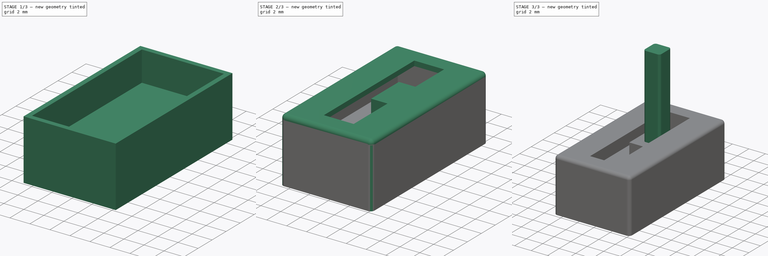
[diagram: build sequence overview — one tinted view per stage of 3, left to right]
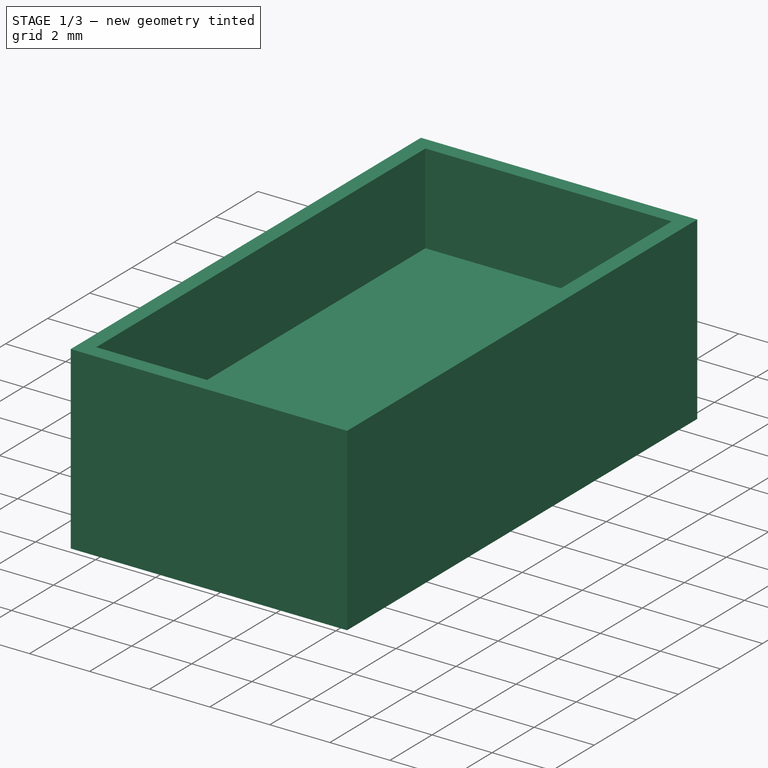
[diagram: stage 1 of 3 — iso view after this stage's code; geometry added in this stage tinted green]
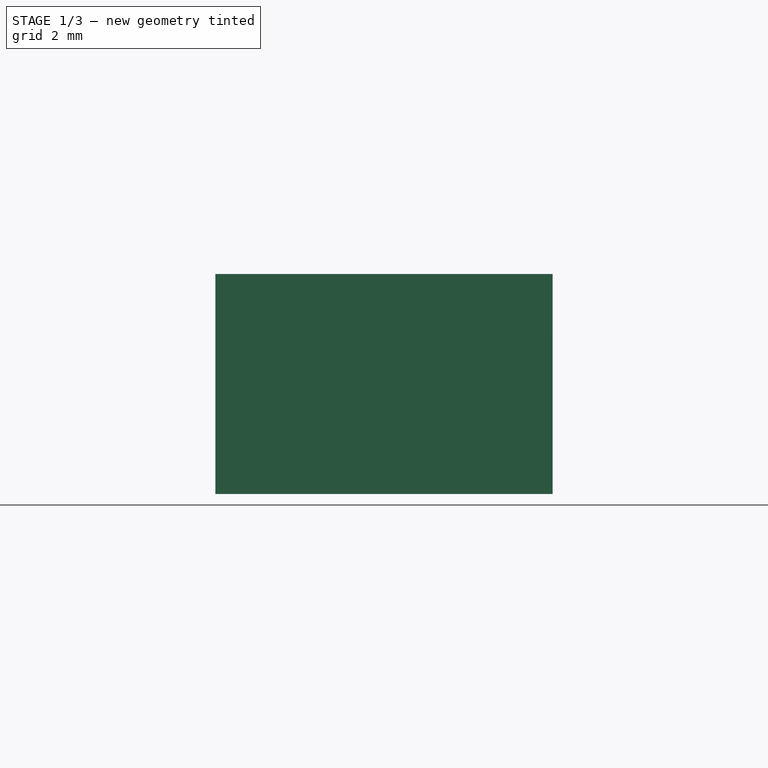
[diagram: stage 1 of 3 — front view after this stage's code; geometry added in this stage tinted green]
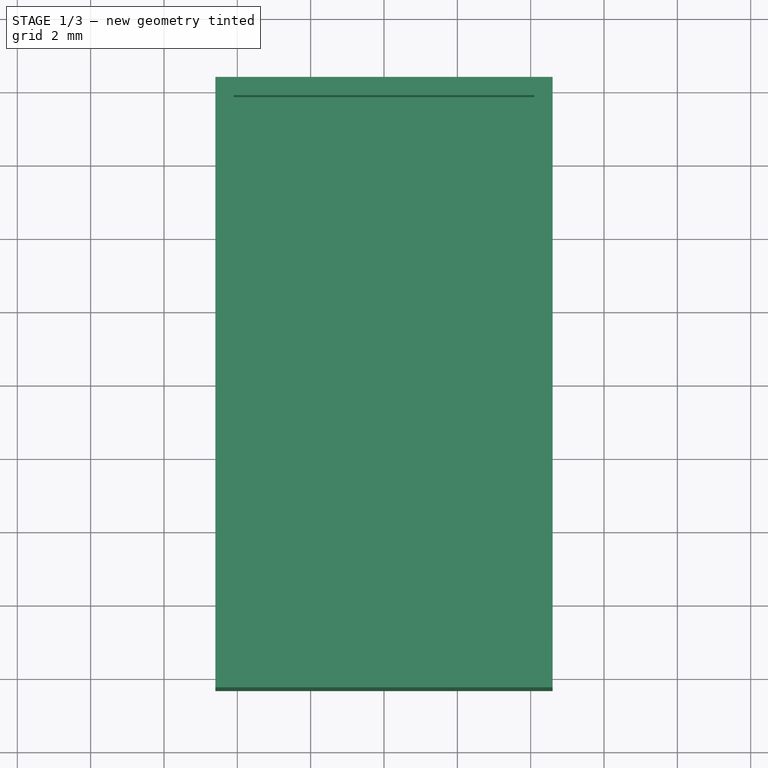
[diagram: stage 1 of 3 — top view after this stage's code; geometry added in this stage tinted green]
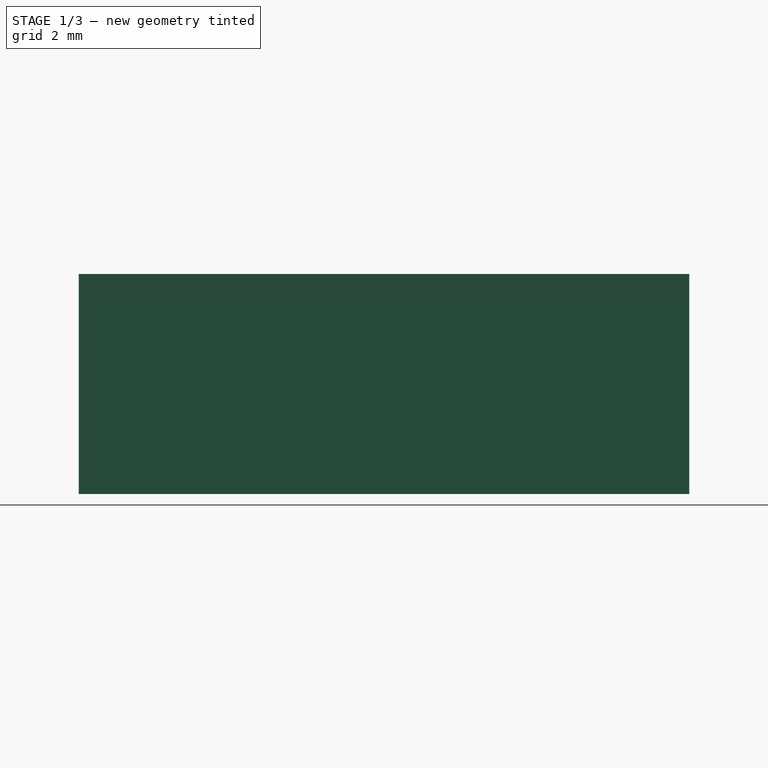
[diagram: stage 1 of 3 — right view after this stage's code; geometry added in this stage tinted green]
FCSTD DOCUMENT  (FreeCAD 0.20R)
Label: Potenciometro
License: All rights reserved
LicenseURL: http://en.wikipedia.org/wiki/All_rights_reserved
objects: Sketcher::SketchObject×5, PartDesign::Pad×5, PartDesign::Fillet×2, PartDesign::Body×1
note: 20 computed .brp shape members not serialized (recipe doc carries the construction recipe); baked Part::Feature solids carry a one-line shape summary decoded from their .brp

FEATURE [Sketcher::SketchObject] Sketch
  FullyConstrained = true
  MapMode = 5
  Support = -> [XY_Plane]
  sketch-geometry (6):
    g0: LineSegment StartX=-4.6 StartY=8.325 StartZ=0 EndX=4.6 EndY=8.325 EndZ=0
    g1: LineSegment StartX=4.6 StartY=8.325 StartZ=0 EndX=4.6 EndY=-8.325 EndZ=0
    g2: LineSegment StartX=4.6 StartY=-8.325 StartZ=0 EndX=-4.6 EndY=-8.325 EndZ=0
    g3: LineSegment StartX=-4.6 StartY=-8.325 StartZ=0 EndX=-4.6 EndY=8.325 EndZ=0
    g4: LineSegment StartX=-4.6 StartY=8.325 StartZ=0 EndX=4.6 EndY=-8.325 EndZ=0
    g5: LineSegment StartX=4.6 StartY=8.325 StartZ=0 EndX=-4.6 EndY=-8.325 EndZ=0
  constraints (16):
    c: Coincident(g0,g1)
    c: Coincident(g1,g2)
    c: Coincident(g2,g3)
    c: Coincident(g3,g0)
    c: Horizontal(g0)
    c: Horizontal(g2)
    c: Vertical(g1)
    c: Vertical(g3)
    c: Coincident(g4,g0)
    c: Coincident(g4,g1)
    c: Coincident(g5,g0)
    c: Coincident(g5,g2)
    c: PointOnObject(g-1,g5)
    c: PointOnObject(g-1,g4)
    c: DistanceY(g2,g0) = 16.65
    c: DistanceX(g0,g0) = 9.2
FEATURE [PartDesign::Pad] Pad
  Direction = (0,0,1)
  Length = 3
  Length2 = 10
  Profile = -> Sketch
  ReferenceAxis = -> Sketch [N_Axis]
  Type = 0
FEATURE [Sketcher::SketchObject] Sketch001
  ExternalGeometry = -> [Pad]
  FullyConstrained = true
  MapMode = 5
  Placement = pos=(0,0,3) rot=(0,0,1;0rad)
  Support = -> [Pad]
  sketch-geometry (11):
    g0: LineSegment StartX=-4.6 StartY=8.325 StartZ=0 EndX=4.6 EndY=8.325 EndZ=0
    g1: LineSegment StartX=4.6 StartY=8.325 StartZ=0 EndX=4.6 EndY=-8.325 EndZ=0
    g2: LineSegment StartX=4.6 StartY=-8.325 StartZ=0 EndX=-4.6 EndY=-8.325 EndZ=0
    g3: LineSegment StartX=-4.6 StartY=-8.325 StartZ=0 EndX=-4.6 EndY=8.325 EndZ=0
    g4: LineSegment StartX=-4.1 StartY=7.825 StartZ=0 EndX=4.1 EndY=7.825 EndZ=0
    g5: LineSegment StartX=4.1 StartY=7.825 StartZ=0 EndX=4.1 EndY=-7.825 EndZ=0
    g6: LineSegment StartX=4.1 StartY=-7.825 StartZ=0 EndX=-4.1 EndY=-7.825 EndZ=0
    g7: LineSegment StartX=-4.1 StartY=-7.825 StartZ=0 EndX=-4.1 EndY=7.825 EndZ=0
    g8: LineSegment StartX=-4.1 StartY=7.825 StartZ=0 EndX=-4.6 EndY=8.325 EndZ=0
    g9: LineSegment StartX=4.1 StartY=7.825 StartZ=0 EndX=4.6 EndY=8.325 EndZ=0
    g10: LineSegment StartX=4.1 StartY=-7.825 StartZ=0 EndX=4.6 EndY=-8.325 EndZ=0
  constraints (28):
    c: Coincident(g0,g1)
    c: Coincident(g1,g2)
    c: Coincident(g2,g3)
    c: Coincident(g3,g0)
    c: Horizontal(g0)
    c: Horizontal(g2)
    c: Vertical(g1)
    c: Vertical(g3)
    c: Coincident(g0,g-3)
    c: Coincident(g1,g-4)
    c: Coincident(g4,g5)
    c: Coincident(g5,g6)
    c: Coincident(g6,g7)
    c: Coincident(g7,g4)
    c: Horizontal(g4)
    c: Horizontal(g6)
    c: Vertical(g5)
    c: Vertical(g7)
    c: Coincident(g8,g4)
    c: Coincident(g8,g0)
    c: Coincident(g9,g4)
    c: Coincident(g9,g0)
    c: Coincident(g10,g5)
    c: Coincident(g10,g1)
    c: Equal(g9,g8)
    c: Equal(g8,g10)
    c: DistanceY(g1,g5) = 0.5
    c: DistanceX(g5,g1) = 0.5
FEATURE [PartDesign::Pad] Pad001
  BaseFeature = -> Pad
  Direction = (0,0,1)
  Length = 3
  Length2 = 10
  Profile = -> Sketch001
  ReferenceAxis = -> Sketch001 [N_Axis]
  Type = 0
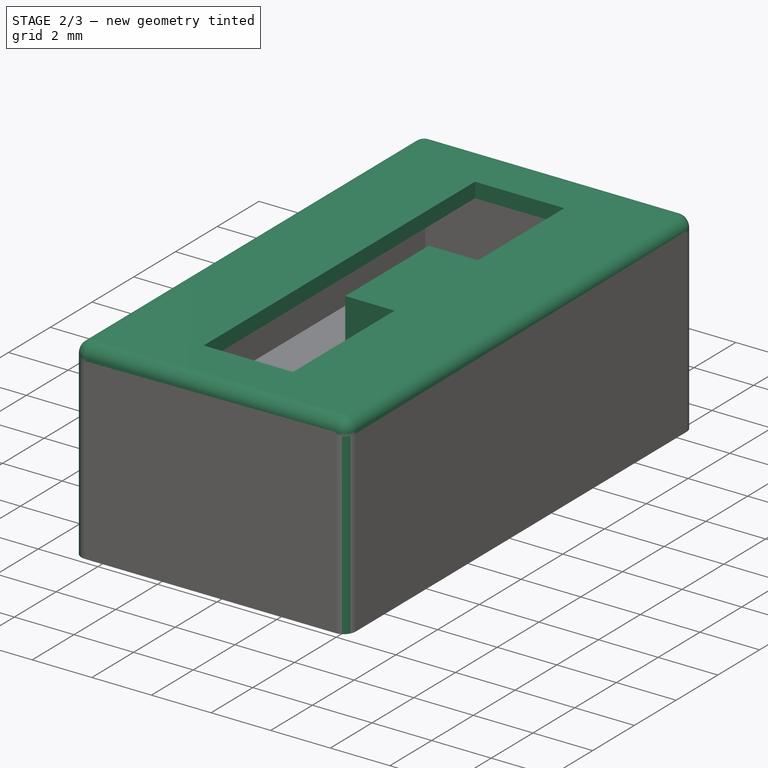
[diagram: stage 2 of 3 — iso view after this stage's code; geometry added in this stage tinted green]
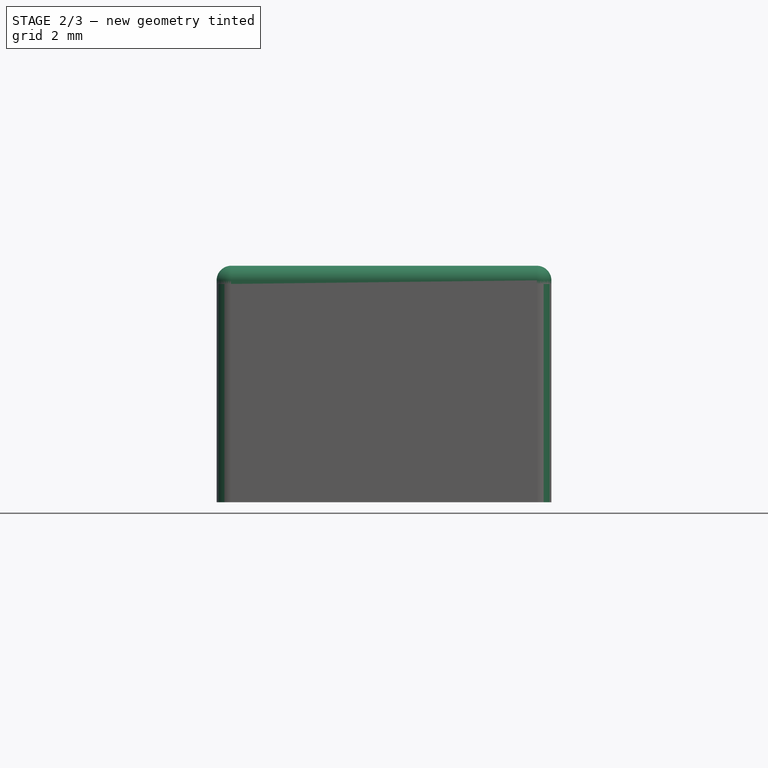
[diagram: stage 2 of 3 — front view after this stage's code; geometry added in this stage tinted green]
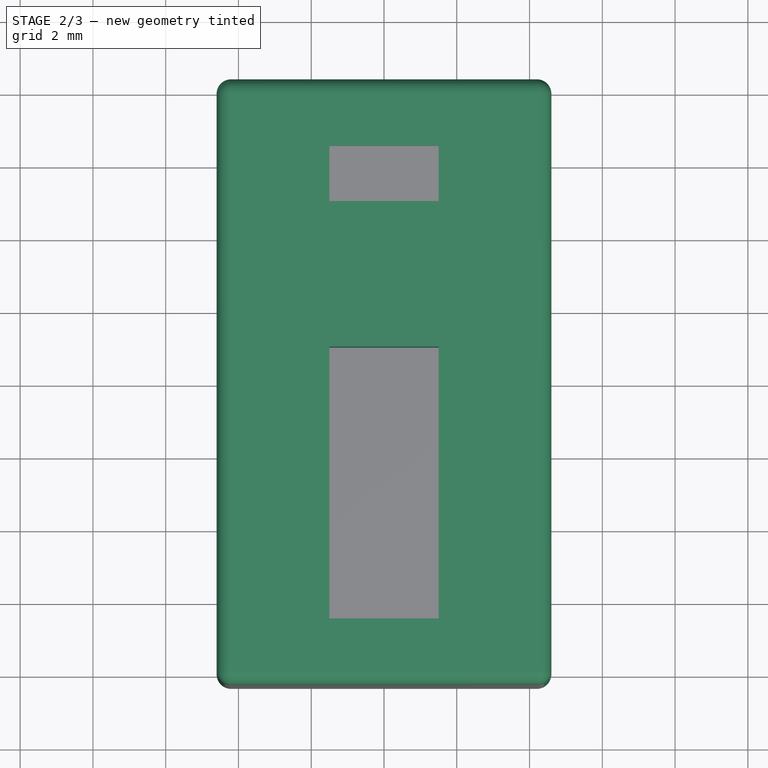
[diagram: stage 2 of 3 — top view after this stage's code; geometry added in this stage tinted green]
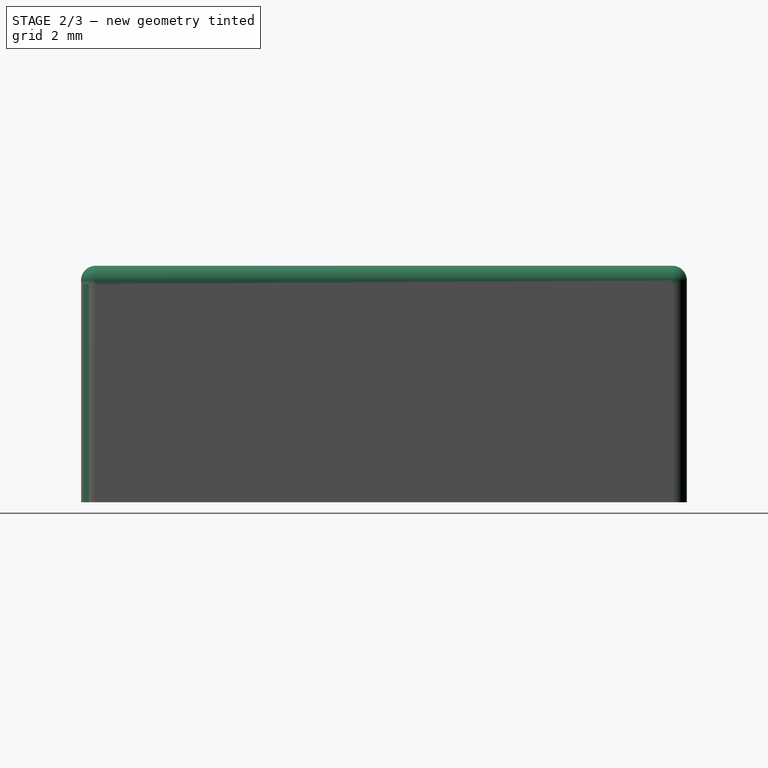
[diagram: stage 2 of 3 — right view after this stage's code; geometry added in this stage tinted green]
FEATURE [Sketcher::SketchObject] Sketch002
  ExternalGeometry = -> [Pad001]
  FullyConstrained = true
  MapMode = 5
  Placement = pos=(0,0,6) rot=(0,0,1;0rad)
  Support = -> [Pad001]
  sketch-geometry (10):
    g0: LineSegment StartX=-4.6 StartY=8.325 StartZ=0 EndX=4.6 EndY=8.325 EndZ=0
    g1: LineSegment StartX=4.6 StartY=8.325 StartZ=0 EndX=4.6 EndY=-8.325 EndZ=0
    g2: LineSegment StartX=4.6 StartY=-8.325 StartZ=0 EndX=-4.6 EndY=-8.325 EndZ=0
    g3: LineSegment StartX=-4.6 StartY=-8.325 StartZ=0 EndX=-4.6 EndY=8.325 EndZ=0
    g4: LineSegment StartX=-1.5 StartY=6.5 StartZ=0 EndX=1.5 EndY=6.5 EndZ=0
    g5: LineSegment StartX=1.5 StartY=6.5 StartZ=0 EndX=1.5 EndY=-6.5 EndZ=0
    g6: LineSegment StartX=1.5 StartY=-6.5 StartZ=0 EndX=-1.5 EndY=-6.5 EndZ=0
    g7: LineSegment StartX=-1.5 StartY=-6.5 StartZ=0 EndX=-1.5 EndY=6.5 EndZ=0
    g8: LineSegment StartX=-1.5 StartY=6.5 StartZ=0 EndX=1.5 EndY=-6.5 EndZ=0
    g9: LineSegment StartX=1.5 StartY=6.5 StartZ=0 EndX=-1.5 EndY=-6.5 EndZ=0
  constraints (26):
    c: Coincident(g0,g1)
    c: Coincident(g1,g2)
    c: Coincident(g2,g3)
    c: Coincident(g3,g0)
    c: Horizontal(g0)
    c: Horizontal(g2)
    c: Vertical(g1)
    c: Vertical(g3)
    c: Coincident(g0,g-3)
    c: Coincident(g1,g-4)
    c: Coincident(g4,g5)
    c: Coincident(g5,g6)
    c: Coincident(g6,g7)
    c: Coincident(g7,g4)
    c: Horizontal(g4)
    c: Horizontal(g6)
    c: Vertical(g5)
    c: Vertical(g7)
    c: DistanceY(g5,g4) = 13
    c: DistanceX(g4,g4) = 3
    c: Coincident(g8,g4)
    c: Coincident(g8,g5)
    c: Coincident(g9,g4)
    c: Coincident(g9,g6)
    c: PointOnObject(g-1,g9)
    c: PointOnObject(g-1,g8)
FEATURE [PartDesign::Pad] Pad002
  BaseFeature = -> Pad001
  Direction = (0,0,1)
  Length = 0.5
  Length2 = 10
  Profile = -> Sketch002
  ReferenceAxis = -> Sketch002 [N_Axis]
  Type = 0
FEATURE [PartDesign::Fillet] Fillet
  Base = -> Pad002 [Edge8,Edge5,Edge1,Edge2,Edge22,Edge27,Edge25,Edge28]
  BaseFeature = -> Pad002
  Radius = 0.4
  SupportTransform = false
  UseAllEdges = false
FEATURE [Sketcher::SketchObject] Sketch003
  FullyConstrained = true
  MapMode = 5
  Placement = pos=(0,0,3) rot=(0,0,1;0rad)
  Support = -> [Fillet]
  sketch-geometry (6):
    g0: LineSegment StartX=-2 StartY=5 StartZ=0 EndX=2 EndY=5 EndZ=0
    g1: LineSegment StartX=2 StartY=5 StartZ=0 EndX=2 EndY=1 EndZ=0
    g2: LineSegment StartX=2 StartY=1 StartZ=0 EndX=-2 EndY=1 EndZ=0
    g3: LineSegment StartX=-2 StartY=1 StartZ=0 EndX=-2 EndY=5 EndZ=0
    g4: LineSegment StartX=-2 StartY=5 StartZ=0 EndX=2 EndY=1 EndZ=0
    g5: LineSegment StartX=2 StartY=5 StartZ=0 EndX=0 EndY=3 EndZ=0
  constraints (17):
    c: Coincident(g0,g1)
    c: Coincident(g1,g2)
    c: Coincident(g2,g3)
    c: Coincident(g3,g0)
    c: Horizontal(g0)
    c: Horizontal(g2)
    c: Vertical(g1)
    c: Vertical(g3)
    c: Coincident(g4,g0)
    c: Coincident(g4,g1)
    c: Coincident(g5,g0)
    c: PointOnObject(g5,g4)
    c: Vertical(g5,g-1)
    c: Perpendicular(g4,g5)
    c: Equal(g1,g2)
    c: DistanceY(g1,g0) = 4
    c: DistanceY(g-1,g5) = 3
FEATURE [PartDesign::Pad] Pad003
  BaseFeature = -> Fillet
  Direction = (0,0,1)
  Length = 2
  Length2 = 10
  Profile = -> Sketch003
  ReferenceAxis = -> Sketch003 [N_Axis]
  Type = 0
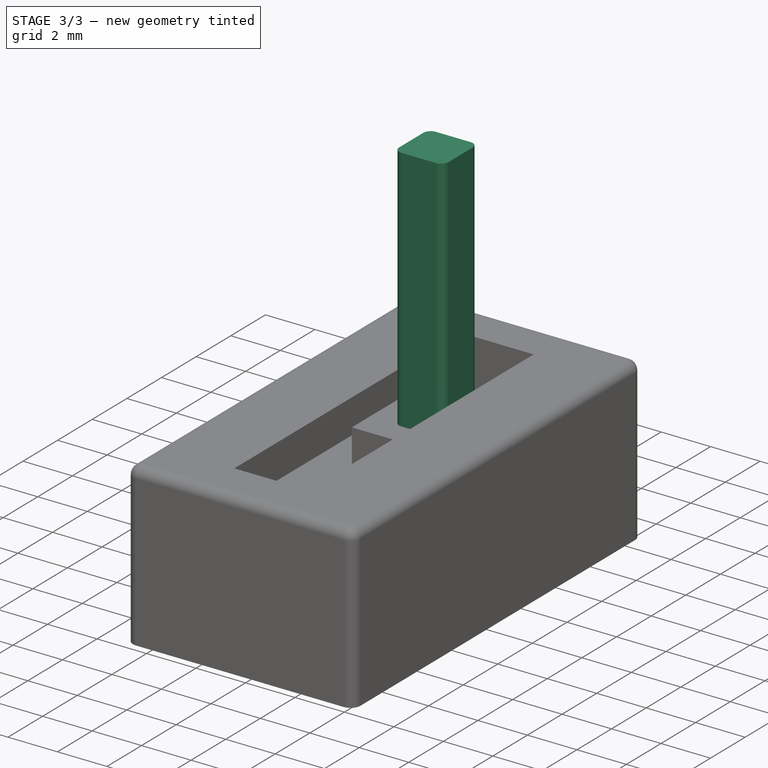
[diagram: stage 3 of 3 — iso view after this stage's code; geometry added in this stage tinted green]
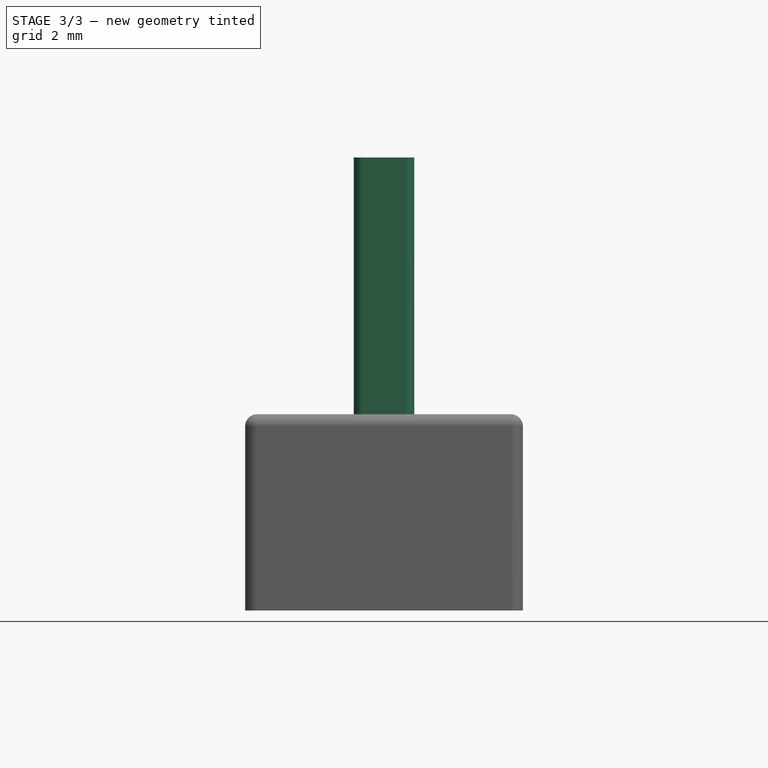
[diagram: stage 3 of 3 — front view after this stage's code; geometry added in this stage tinted green]
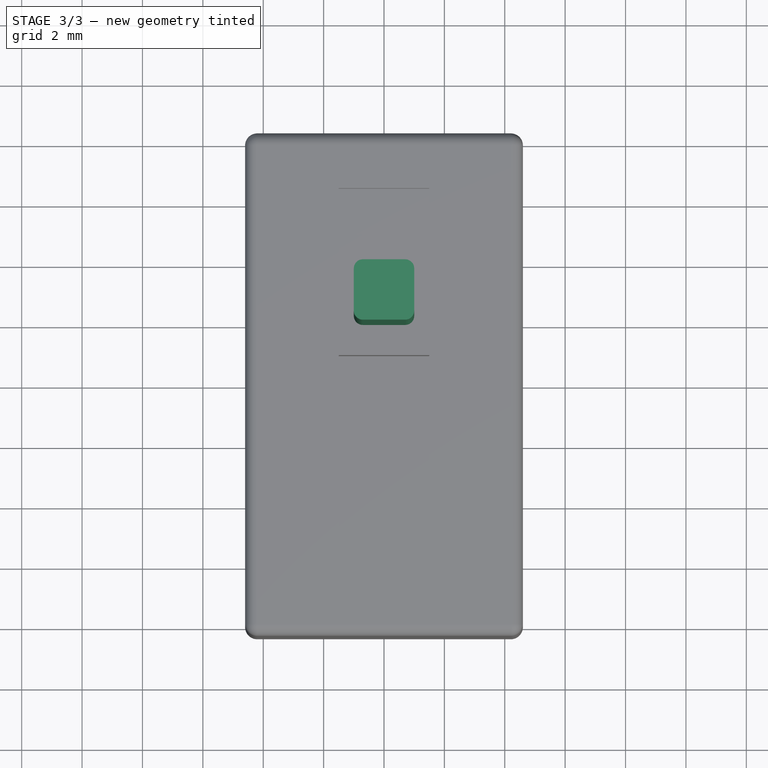
[diagram: stage 3 of 3 — top view after this stage's code; geometry added in this stage tinted green]
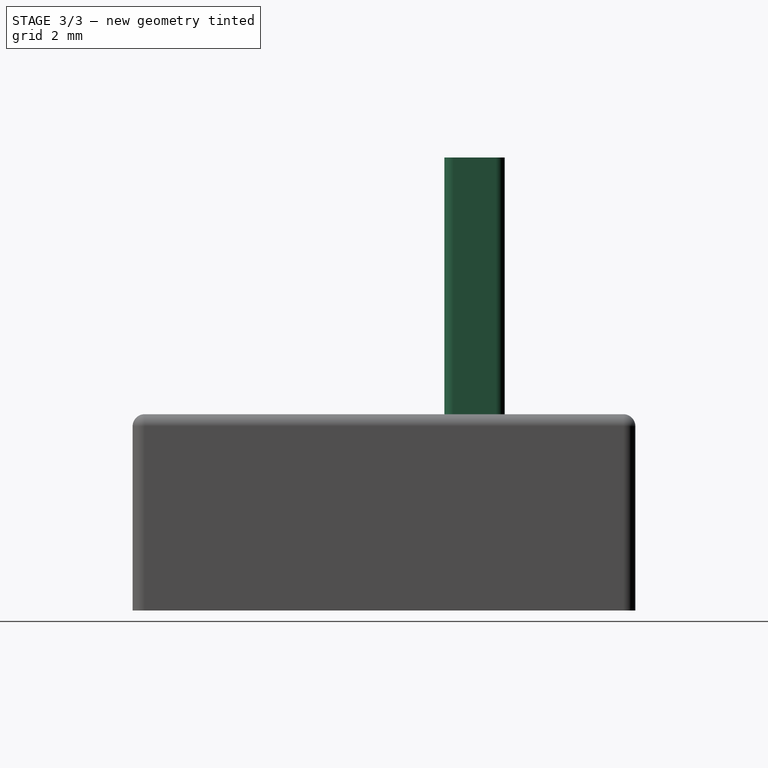
[diagram: stage 3 of 3 — right view after this stage's code; geometry added in this stage tinted green]
FEATURE [Sketcher::SketchObject] Sketch004
  ExternalGeometry = -> [Pad003]
  FullyConstrained = true
  MapMode = 5
  Placement = pos=(0,0,5) rot=(0,0,1;0rad)
  Support = -> [Pad003]
  sketch-geometry (6):
    g0: LineSegment StartX=-2 StartY=5 StartZ=0 EndX=2 EndY=1 EndZ=0
    g1: LineSegment StartX=2 StartY=5 StartZ=0 EndX=0 EndY=3 EndZ=0
    g2: LineSegment StartX=-1 StartY=4 StartZ=0 EndX=1 EndY=4 EndZ=0
    g3: LineSegment StartX=1 StartY=4 StartZ=0 EndX=1 EndY=2 EndZ=0
    g4: LineSegment StartX=1 StartY=2 StartZ=0 EndX=-1 EndY=2 EndZ=0
    g5: LineSegment StartX=-1 StartY=2 StartZ=0 EndX=-1 EndY=4 EndZ=0
  constraints (17):
    c: Coincident(g0,g-3)
    c: Coincident(g0,g-4)
    c: Coincident(g1,g-3)
    c: PointOnObject(g1,g0)
    c: Perpendicular(g0,g1)
    c: Coincident(g2,g3)
    c: Coincident(g3,g4)
    c: Coincident(g4,g5)
    c: Coincident(g5,g2)
    c: Horizontal(g2)
    c: Horizontal(g4)
    c: Vertical(g3)
    c: Vertical(g5)
    c: PointOnObject(g2,g0)
    c: PointOnObject(g3,g0)
    c: PointOnObject(g2,g1)
    c: DistanceX(g4,g4) = 2
FEATURE [PartDesign::Pad] Pad004
  BaseFeature = -> Pad003
  Direction = (0,0,1)
  Length = 10
  Length2 = 10
  Profile = -> Sketch004
  ReferenceAxis = -> Sketch004 [N_Axis]
  Type = 0
FEATURE [PartDesign::Fillet] Fillet001
  Base = -> Pad004 [Edge114,Edge113,Edge118,Edge116]
  BaseFeature = -> Pad004
  Radius = 0.3
  SupportTransform = false
  UseAllEdges = false
FEATURE [PartDesign::Body] Body
  Group = -> [Sketch,Pad,Sketch001,Pad001,Sketch002,Pad002,Fillet,Sketch003,Pad003,Sketch004,Pad004,Fillet001]
  Origin = -> Origin
  Tip = -> Fillet001
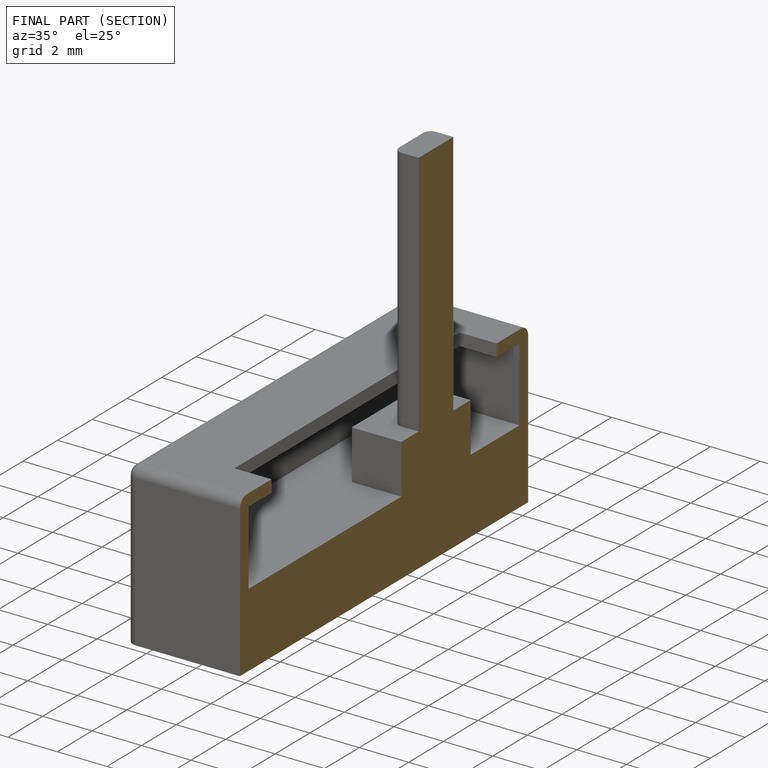
[diagram: finished part — half-section view (interior)]
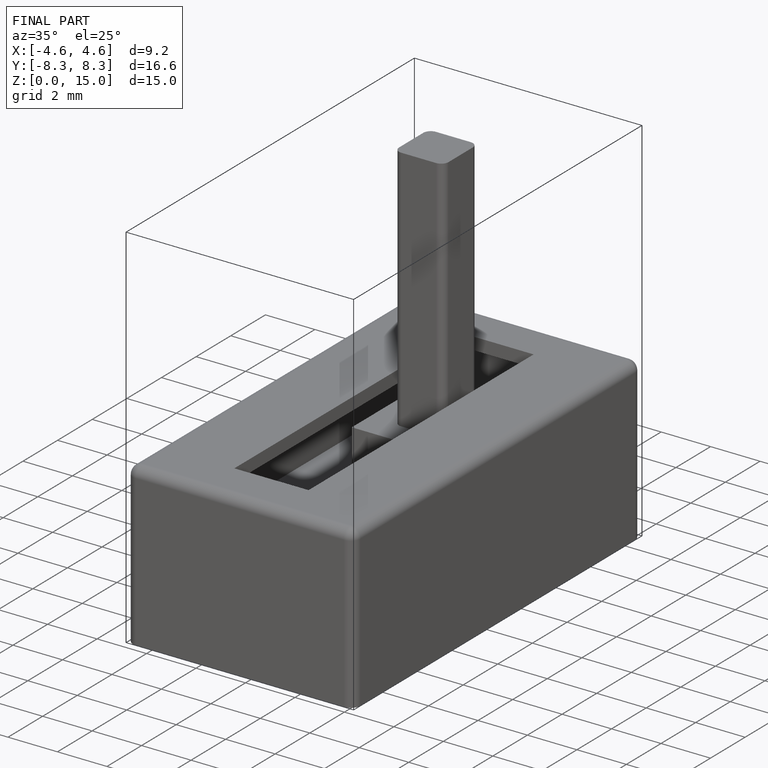
[diagram: finished part — iso view with bounding-box wireframe]
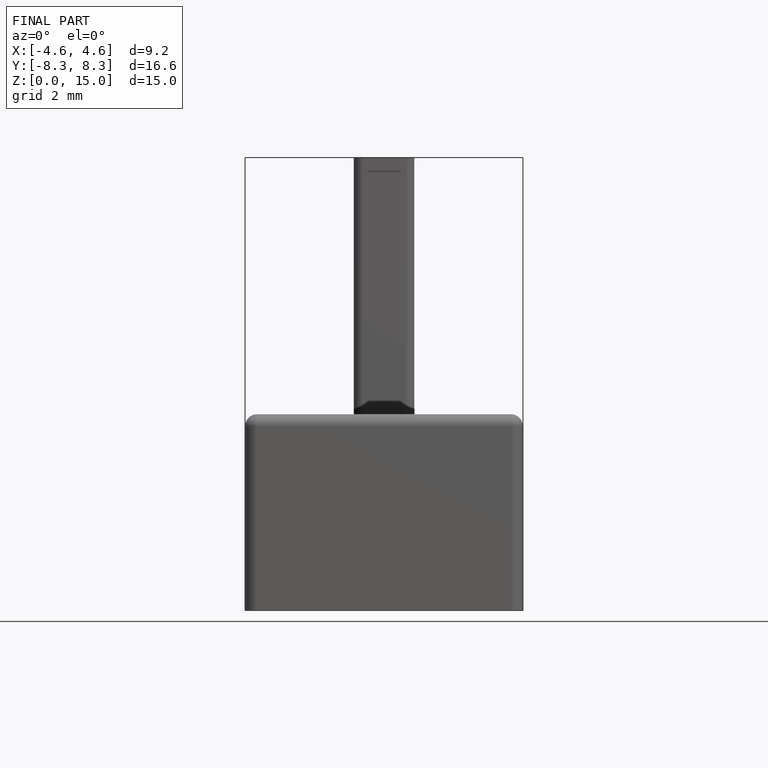
[diagram: finished part — front view with bounding-box wireframe]
